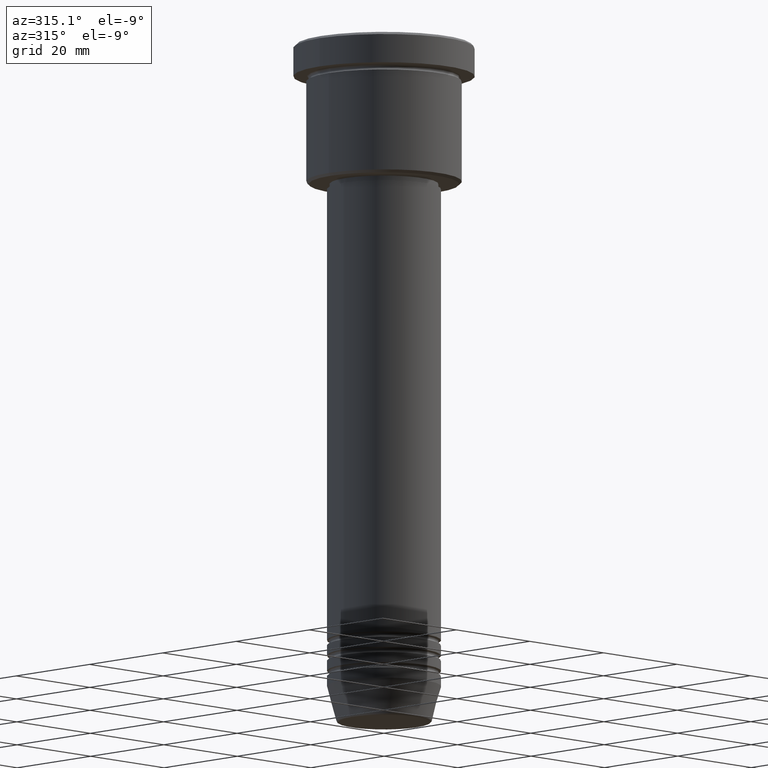
[diagram: clean part render]
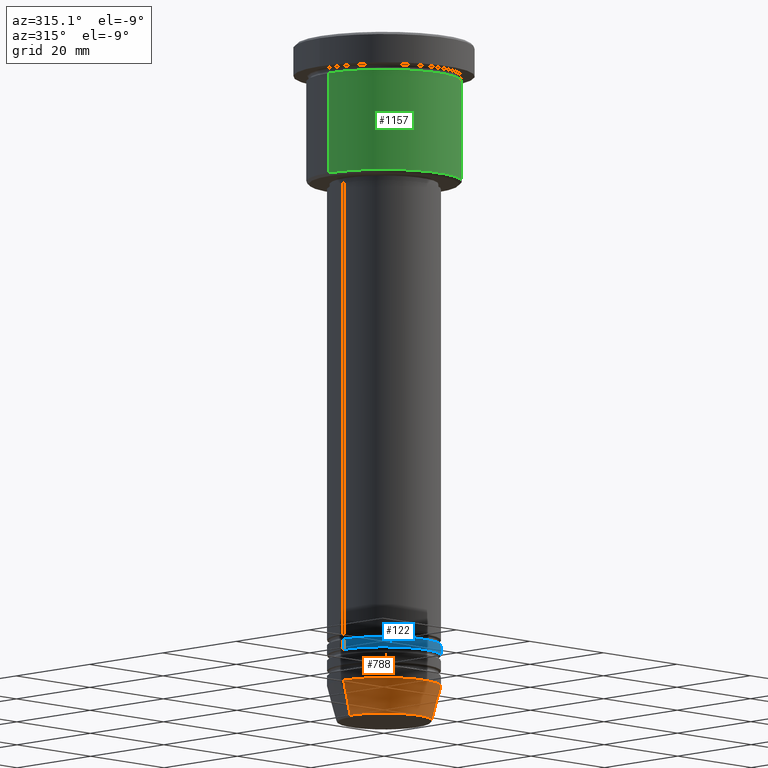
[diagram: same view with three faces highlighted in distinct colors, each labeled with its STEP entity id]
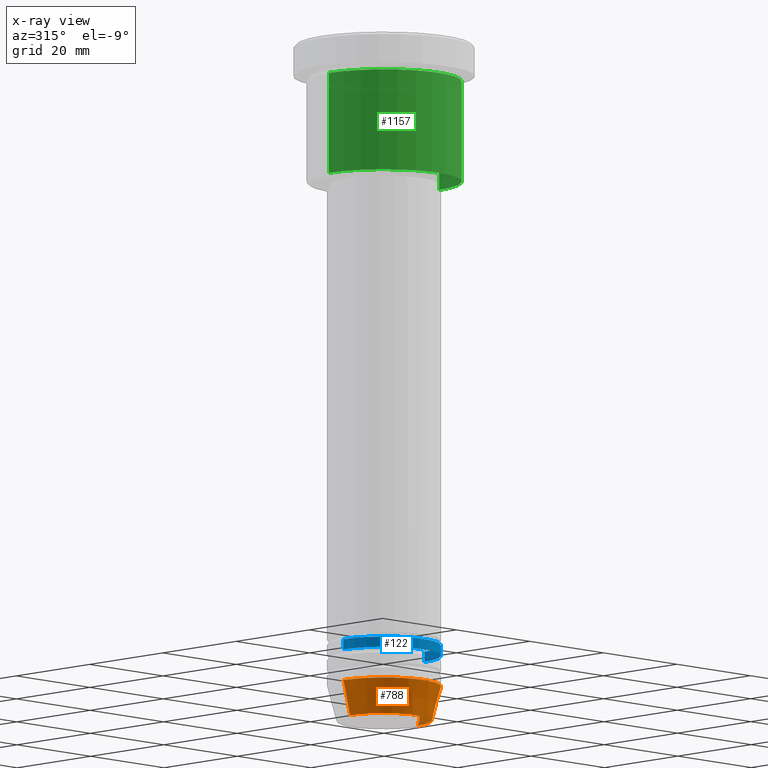
[diagram: x-ray of the same camera — body ghosted, the three highlighted faces saturated]
A machine part, auxiliary view with three faces highlighted in distinct colors.
The next image is the same camera in x-ray (body ghosted, the three faces saturated) — at least one of them is partly hidden behind the body in this view.
Their STEP definitions:

[orange] entity #788 — the highlighted conical surface has half-angle 15 deg.
#17 = LINE ( 'NONE', #686, #401 ) ;
#111 = FACE_OUTER_BOUND ( 'NONE', #561, .T. ) ;
#125 = CARTESIAN_POINT ( 'NONE',  ( -11.00000000000000000, 1.347111479062088405E-15, -125.0000000000000000 ) ) ;
#164 = EDGE_CURVE ( 'NONE', #918, #892, #750, .T. ) ;
#179 = VERTEX_POINT ( 'NONE', #466 ) ;
#198 = CARTESIAN_POINT ( 'NONE',  ( 0.000000000000000000, 0.000000000000000000, -131.6294095225512422 ) ) ;
#208 = DIRECTION ( 'NONE',  ( -0.000000000000000000, -0.000000000000000000, 1.000000000000000000 ) ) ;
#213 = ORIENTED_EDGE ( 'NONE', *, *, #914, .F. ) ;
#214 = DIRECTION ( 'NONE',  ( 1.000000000000000000, 0.000000000000000000, 0.000000000000000000 ) ) ;
#320 = AXIS2_PLACEMENT_3D ( 'NONE', #1064, #609, #727 ) ;
#386 = CARTESIAN_POINT ( 'NONE',  ( 0.000000000000000000, 0.000000000000000000, -125.0000000000000000 ) ) ;
#399 = CARTESIAN_POINT ( 'NONE',  ( 9.223655072137187716, 0.000000000000000000, -131.6294095225512422 ) ) ;
#401 = VECTOR ( 'NONE', #974, 1000.000000000000000 ) ;
#466 = CARTESIAN_POINT ( 'NONE',  ( -9.223655072137187716, 1.238341722557647004E-15, -131.6294095225512422 ) ) ;
#470 = CARTESIAN_POINT ( 'NONE',  ( 11.00000000000000000, 0.000000000000000000, -125.0000000000000000 ) ) ;
#476 = LINE ( 'NONE', #125, #638 ) ;
#487 = DIRECTION ( 'NONE',  ( -0.2588190451025213501, 3.169619151431772337E-17, 0.9659258262890680902 ) ) ;
#561 = EDGE_LOOP ( 'NONE', ( #213, #911, #663, #584 ) ) ;
#574 = DIRECTION ( 'NONE',  ( -0.000000000000000000, -0.000000000000000000, 1.000000000000000000 ) ) ;
#584 = ORIENTED_EDGE ( 'NONE', *, *, #164, .F. ) ;
#609 = DIRECTION ( 'NONE',  ( -0.000000000000000000, -0.000000000000000000, 1.000000000000000000 ) ) ;
#614 = AXIS2_PLACEMENT_3D ( 'NONE', #198, #208, #1038 ) ;
#638 = VECTOR ( 'NONE', #487, 1000.000000000000000 ) ;
#663 = ORIENTED_EDGE ( 'NONE', *, *, #931, .T. ) ;
#675 = CONICAL_SURFACE ( 'NONE', #752, 11.00000000000000000, 0.2617993877991500740 ) ;
#686 = CARTESIAN_POINT ( 'NONE',  ( 11.00000000000000000, 0.000000000000000000, -125.0000000000000000 ) ) ;
#727 = DIRECTION ( 'NONE',  ( 1.000000000000000000, 0.000000000000000000, 0.000000000000000000 ) ) ;
#750 = CIRCLE ( 'NONE', #320, 11.00000000000000000 ) ;
#752 = AXIS2_PLACEMENT_3D ( 'NONE', #386, #574, #214 ) ;
#761 = EDGE_CURVE ( 'NONE', #179, #902, #978, .T. ) ;
#788 = ADVANCED_FACE ( 'NONE', ( #111 ), #675, .T. ) ;
#892 = VERTEX_POINT ( 'NONE', #470 ) ;
#902 = VERTEX_POINT ( 'NONE', #399 ) ;
#911 = ORIENTED_EDGE ( 'NONE', *, *, #761, .T. ) ;
#914 = EDGE_CURVE ( 'NONE', #179, #918, #476, .T. ) ;
#918 = VERTEX_POINT ( 'NONE', #1104 ) ;
#931 = EDGE_CURVE ( 'NONE', #902, #892, #17, .T. ) ;
#974 = DIRECTION ( 'NONE',  ( 0.2588190451025213501, 0.000000000000000000, 0.9659258262890680902 ) ) ;
#978 = CIRCLE ( 'NONE', #614, 9.223655072137187716 ) ;
#1038 = DIRECTION ( 'NONE',  ( 1.000000000000000000, 0.000000000000000000, 0.000000000000000000 ) ) ;
#1064 = CARTESIAN_POINT ( 'NONE',  ( 0.000000000000000000, 0.000000000000000000, -125.0000000000000000 ) ) ;
#1104 = CARTESIAN_POINT ( 'NONE',  ( -11.00000000000000000, 1.347111479062088405E-15, -125.0000000000000000 ) ) ;

[blue] entity #122 — the highlighted cylindrical surface (partial cylindrical patch) has radius 11 mm, axis along (-0, -0, 1).
#24 = CARTESIAN_POINT ( 'NONE',  ( 0.000000000000000000, 0.000000000000000000, -116.9999999999999858 ) ) ;
#48 = ORIENTED_EDGE ( 'NONE', *, *, #874, .F. ) ;
#66 = EDGE_LOOP ( 'NONE', ( #206, #1021, #432, #48 ) ) ;
#75 = DIRECTION ( 'NONE',  ( -0.000000000000000000, -0.000000000000000000, 1.000000000000000000 ) ) ;
#93 = VERTEX_POINT ( 'NONE', #534 ) ;
#122 = ADVANCED_FACE ( 'NONE', ( #530 ), #1049, .T. ) ;
#153 = AXIS2_PLACEMENT_3D ( 'NONE', #608, #230, #1137 ) ;
#206 = ORIENTED_EDGE ( 'NONE', *, *, #450, .F. ) ;
#230 = DIRECTION ( 'NONE',  ( -0.000000000000000000, -0.000000000000000000, 1.000000000000000000 ) ) ;
#264 = VERTEX_POINT ( 'NONE', #278 ) ;
#278 = CARTESIAN_POINT ( 'NONE',  ( -11.00000000000000000, 1.347111479062088405E-15, -116.9999999999999858 ) ) ;
#289 = DIRECTION ( 'NONE',  ( 1.000000000000000000, 0.000000000000000000, 0.000000000000000000 ) ) ;
#310 = LINE ( 'NONE', #471, #559 ) ;
#341 = VECTOR ( 'NONE', #1076, 1000.000000000000000 ) ;
#431 = LINE ( 'NONE', #710, #341 ) ;
#432 = ORIENTED_EDGE ( 'NONE', *, *, #1128, .T. ) ;
#450 = EDGE_CURVE ( 'NONE', #875, #264, #310, .T. ) ;
#471 = CARTESIAN_POINT ( 'NONE',  ( -11.00000000000000000, 1.347111479062088405E-15, 0.000000000000000000 ) ) ;
#472 = EDGE_CURVE ( 'NONE', #875, #1043, #1034, .T. ) ;
#490 = DIRECTION ( 'NONE',  ( -0.000000000000000000, -0.000000000000000000, 1.000000000000000000 ) ) ;
#530 = FACE_OUTER_BOUND ( 'NONE', #66, .T. ) ;
#534 = CARTESIAN_POINT ( 'NONE',  ( 11.00000000000000000, 0.000000000000000000, -116.9999999999999858 ) ) ;
#559 = VECTOR ( 'NONE', #838, 1000.000000000000000 ) ;
#608 = CARTESIAN_POINT ( 'NONE',  ( 0.000000000000000000, 0.000000000000000000, -118.9999999999999716 ) ) ;
#710 = CARTESIAN_POINT ( 'NONE',  ( 11.00000000000000000, 0.000000000000000000, 0.000000000000000000 ) ) ;
#714 = CIRCLE ( 'NONE', #981, 11.00000000000000000 ) ;
#838 = DIRECTION ( 'NONE',  ( -0.000000000000000000, -0.000000000000000000, 1.000000000000000000 ) ) ;
#874 = EDGE_CURVE ( 'NONE', #264, #93, #714, .T. ) ;
#875 = VERTEX_POINT ( 'NONE', #1109 ) ;
#965 = DIRECTION ( 'NONE',  ( 1.000000000000000000, 0.000000000000000000, 0.000000000000000000 ) ) ;
#981 = AXIS2_PLACEMENT_3D ( 'NONE', #24, #490, #289 ) ;
#1021 = ORIENTED_EDGE ( 'NONE', *, *, #472, .T. ) ;
#1034 = CIRCLE ( 'NONE', #153, 11.00000000000000000 ) ;
#1043 = VERTEX_POINT ( 'NONE', #1142 ) ;
#1049 = CYLINDRICAL_SURFACE ( 'NONE', #1073, 11.00000000000000000 ) ;
#1073 = AXIS2_PLACEMENT_3D ( 'NONE', #1138, #75, #965 ) ;
#1076 = DIRECTION ( 'NONE',  ( -0.000000000000000000, -0.000000000000000000, 1.000000000000000000 ) ) ;
#1109 = CARTESIAN_POINT ( 'NONE',  ( -11.00000000000000000, 1.347111479062088405E-15, -118.9999999999999716 ) ) ;
#1128 = EDGE_CURVE ( 'NONE', #1043, #93, #431, .T. ) ;
#1137 = DIRECTION ( 'NONE',  ( 1.000000000000000000, 0.000000000000000000, 0.000000000000000000 ) ) ;
#1138 = CARTESIAN_POINT ( 'NONE',  ( 0.000000000000000000, 0.000000000000000000, 0.000000000000000000 ) ) ;
#1142 = CARTESIAN_POINT ( 'NONE',  ( 11.00000000000000000, 0.000000000000000000, -118.9999999999999716 ) ) ;

[green] entity #1157 — the highlighted cylindrical surface (partial cylindrical patch) has radius 15 mm, axis along (-0, -0, 1).
#5 = VERTEX_POINT ( 'NONE', #100 ) ;
#8 = CARTESIAN_POINT ( 'NONE',  ( 0.000000000000000000, 0.000000000000000000, -26.50000000000000000 ) ) ;
#15 = ORIENTED_EDGE ( 'NONE', *, *, #921, .F. ) ;
#31 = DIRECTION ( 'NONE',  ( -0.000000000000000000, -0.000000000000000000, 1.000000000000000000 ) ) ;
#34 = LINE ( 'NONE', #764, #1092 ) ;
#100 = CARTESIAN_POINT ( 'NONE',  ( 15.00000000000000000, 0.000000000000000000, -26.50000000000000000 ) ) ;
#204 = EDGE_CURVE ( 'NONE', #1085, #841, #440, .T. ) ;
#234 = DIRECTION ( 'NONE',  ( -0.000000000000000000, -0.000000000000000000, 1.000000000000000000 ) ) ;
#262 = EDGE_CURVE ( 'NONE', #1085, #5, #494, .T. ) ;
#273 = CARTESIAN_POINT ( 'NONE',  ( -15.00000000000000000, 1.836970198721029589E-15, 0.000000000000000000 ) ) ;
#309 = CARTESIAN_POINT ( 'NONE',  ( -15.00000000000000000, 1.836970198721029589E-15, -26.50000000000000000 ) ) ;
#312 = CYLINDRICAL_SURFACE ( 'NONE', #463, 15.00000000000000000 ) ;
#346 = CIRCLE ( 'NONE', #523, 15.00000000000000000 ) ;
#368 = DIRECTION ( 'NONE',  ( -0.000000000000000000, -0.000000000000000000, 1.000000000000000000 ) ) ;
#425 = CARTESIAN_POINT ( 'NONE',  ( 0.000000000000000000, 0.000000000000000000, 0.000000000000000000 ) ) ;
#440 = LINE ( 'NONE', #273, #673 ) ;
#463 = AXIS2_PLACEMENT_3D ( 'NONE', #425, #234, #792 ) ;
#494 = CIRCLE ( 'NONE', #766, 15.00000000000000000 ) ;
#515 = FACE_OUTER_BOUND ( 'NONE', #728, .T. ) ;
#523 = AXIS2_PLACEMENT_3D ( 'NONE', #653, #1015, #565 ) ;
#546 = CARTESIAN_POINT ( 'NONE',  ( 15.00000000000000000, 0.000000000000000000, -6.999999999999995559 ) ) ;
#565 = DIRECTION ( 'NONE',  ( 1.000000000000000000, 0.000000000000000000, 0.000000000000000000 ) ) ;
#580 = ORIENTED_EDGE ( 'NONE', *, *, #839, .T. ) ;
#652 = ORIENTED_EDGE ( 'NONE', *, *, #204, .F. ) ;
#653 = CARTESIAN_POINT ( 'NONE',  ( 0.000000000000000000, 0.000000000000000000, -6.999999999999995559 ) ) ;
#673 = VECTOR ( 'NONE', #1002, 1000.000000000000000 ) ;
#709 = VERTEX_POINT ( 'NONE', #546 ) ;
#728 = EDGE_LOOP ( 'NONE', ( #652, #1133, #580, #15 ) ) ;
#764 = CARTESIAN_POINT ( 'NONE',  ( 15.00000000000000000, 0.000000000000000000, 0.000000000000000000 ) ) ;
#766 = AXIS2_PLACEMENT_3D ( 'NONE', #8, #368, #1100 ) ;
#792 = DIRECTION ( 'NONE',  ( 1.000000000000000000, 0.000000000000000000, 0.000000000000000000 ) ) ;
#839 = EDGE_CURVE ( 'NONE', #5, #709, #34, .T. ) ;
#841 = VERTEX_POINT ( 'NONE', #1123 ) ;
#921 = EDGE_CURVE ( 'NONE', #841, #709, #346, .T. ) ;
#1002 = DIRECTION ( 'NONE',  ( -0.000000000000000000, -0.000000000000000000, 1.000000000000000000 ) ) ;
#1015 = DIRECTION ( 'NONE',  ( -0.000000000000000000, -0.000000000000000000, 1.000000000000000000 ) ) ;
#1085 = VERTEX_POINT ( 'NONE', #309 ) ;
#1092 = VECTOR ( 'NONE', #31, 1000.000000000000000 ) ;
#1100 = DIRECTION ( 'NONE',  ( -1.000000000000000000, 0.000000000000000000, 0.000000000000000000 ) ) ;
#1123 = CARTESIAN_POINT ( 'NONE',  ( -15.00000000000000000, 1.836970198721029589E-15, -6.999999999999995559 ) ) ;
#1133 = ORIENTED_EDGE ( 'NONE', *, *, #262, .T. ) ;
#1157 = ADVANCED_FACE ( 'NONE', ( #515 ), #312, .T. ) ;